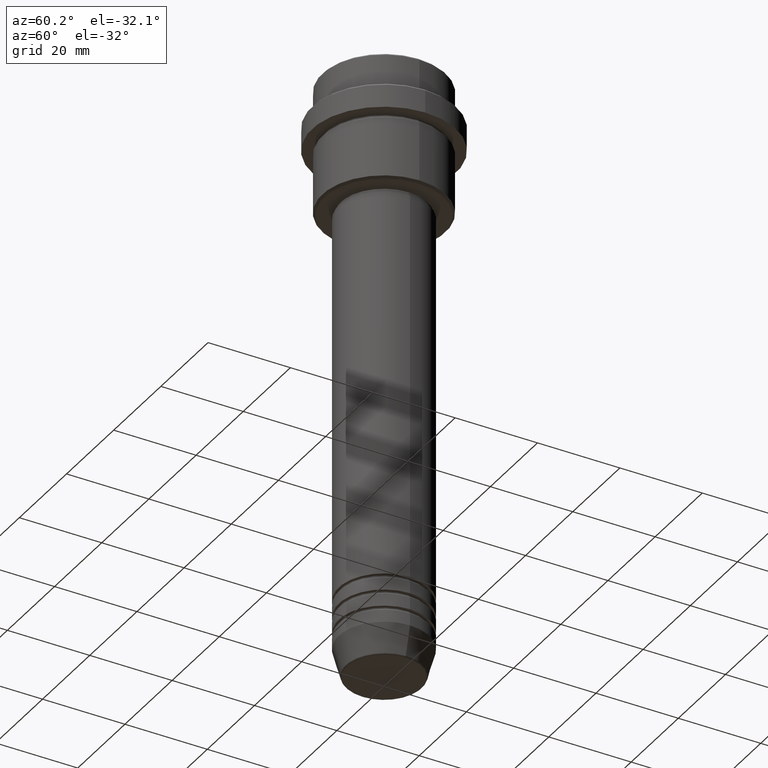
[diagram: clean part render]
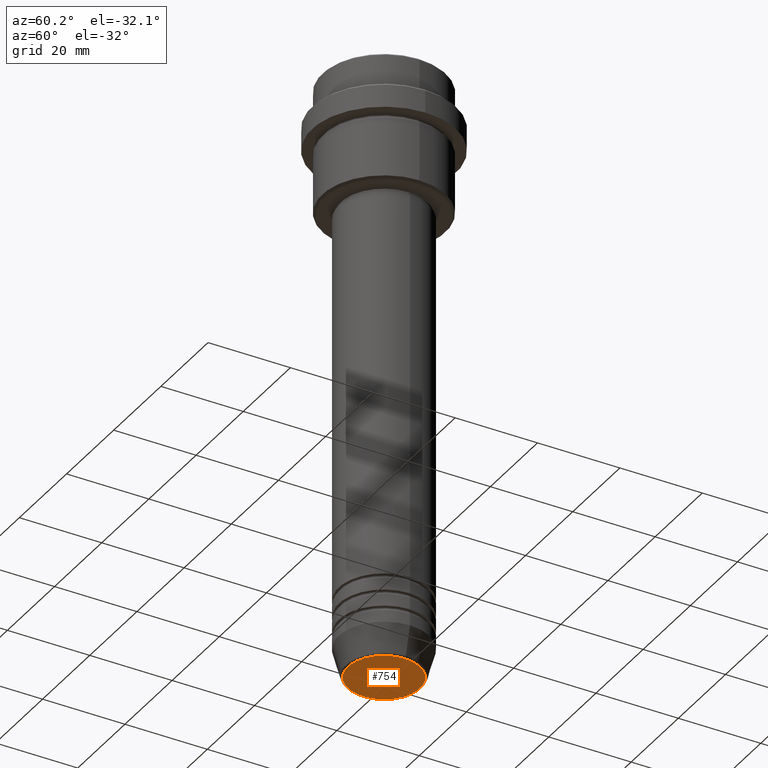
[diagram: same view with one face highlighted and labeled with its STEP entity id]
A machine part, auxiliary view. The second image highlights one B-rep face of the part: STEP entity #754.
In plain terms, the highlighted planar face has unit normal (0, -0, 1).
Its self-contained STEP definition (entity closure, byte-faithful):
#4 = CARTESIAN_POINT ( 'NONE',  ( 0.000000000000000000, 0.000000000000000000, -145.9999999999999716 ) ) ;
#48 = CARTESIAN_POINT ( 'NONE',  ( 8.740692158992656502, 0.000000000000000000, -145.9999999999999716 ) ) ;
#90 = CARTESIAN_POINT ( 'NONE',  ( 0.000000000000000000, 0.000000000000000000, -145.9999999999999716 ) ) ;
#207 = PLANE ( 'NONE',  #828 ) ;
#239 = DIRECTION ( 'NONE',  ( 0.000000000000000000, 0.000000000000000000, -1.000000000000000000 ) ) ;
#313 = FACE_OUTER_BOUND ( 'NONE', #1188, .T. ) ;
#335 = DIRECTION ( 'NONE',  ( 1.000000000000000000, 0.000000000000000000, 0.000000000000000000 ) ) ;
#416 = VERTEX_POINT ( 'NONE', #48 ) ;
#660 = DIRECTION ( 'NONE',  ( 0.000000000000000000, -0.000000000000000000, 1.000000000000000000 ) ) ;
#690 = DIRECTION ( 'NONE',  ( 1.000000000000000000, 0.000000000000000000, 0.000000000000000000 ) ) ;
#754 = ADVANCED_FACE ( 'NONE', ( #313 ), #207, .F. ) ;
#783 = ORIENTED_EDGE ( 'NONE', *, *, #1169, .T. ) ;
#828 = AXIS2_PLACEMENT_3D ( 'NONE', #90, #660, #335 ) ;
#832 = ORIENTED_EDGE ( 'NONE', *, *, #896, .T. ) ;
#862 = DIRECTION ( 'NONE',  ( 0.000000000000000000, 0.000000000000000000, -1.000000000000000000 ) ) ;
#896 = EDGE_CURVE ( 'NONE', #1129, #416, #1413, .T. ) ;
#954 = CARTESIAN_POINT ( 'NONE',  ( -8.740692158992656502, 1.099999016768739062E-15, -145.9999999999999716 ) ) ;
#1129 = VERTEX_POINT ( 'NONE', #954 ) ;
#1169 = EDGE_CURVE ( 'NONE', #416, #1129, #1415, .T. ) ;
#1188 = EDGE_LOOP ( 'NONE', ( #783, #832 ) ) ;
#1207 = AXIS2_PLACEMENT_3D ( 'NONE', #1234, #239, #690 ) ;
#1234 = CARTESIAN_POINT ( 'NONE',  ( 0.000000000000000000, 0.000000000000000000, -145.9999999999999716 ) ) ;
#1290 = DIRECTION ( 'NONE',  ( 1.000000000000000000, 0.000000000000000000, 0.000000000000000000 ) ) ;
#1389 = AXIS2_PLACEMENT_3D ( 'NONE', #4, #862, #1290 ) ;
#1413 = CIRCLE ( 'NONE', #1207, 8.740692158992656502 ) ;
#1415 = CIRCLE ( 'NONE', #1389, 8.740692158992656502 ) ;